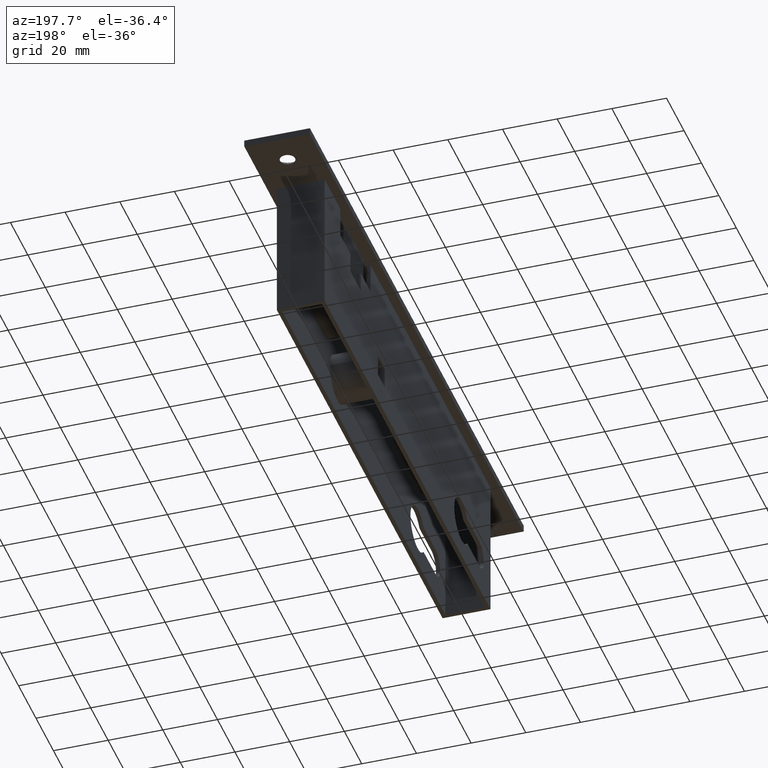
[diagram: clean part render]
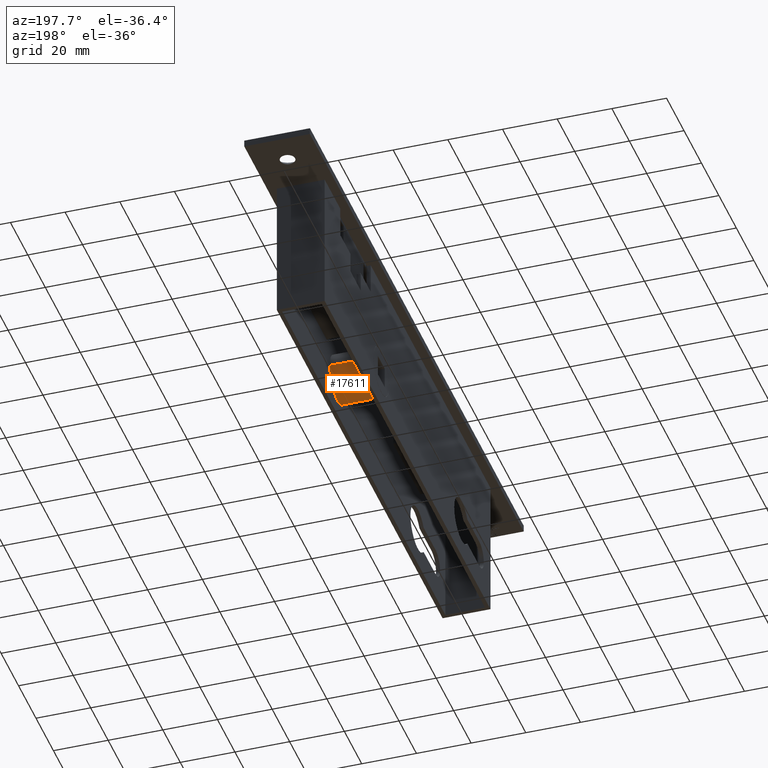
[diagram: same view with one face highlighted and labeled with its STEP entity id]
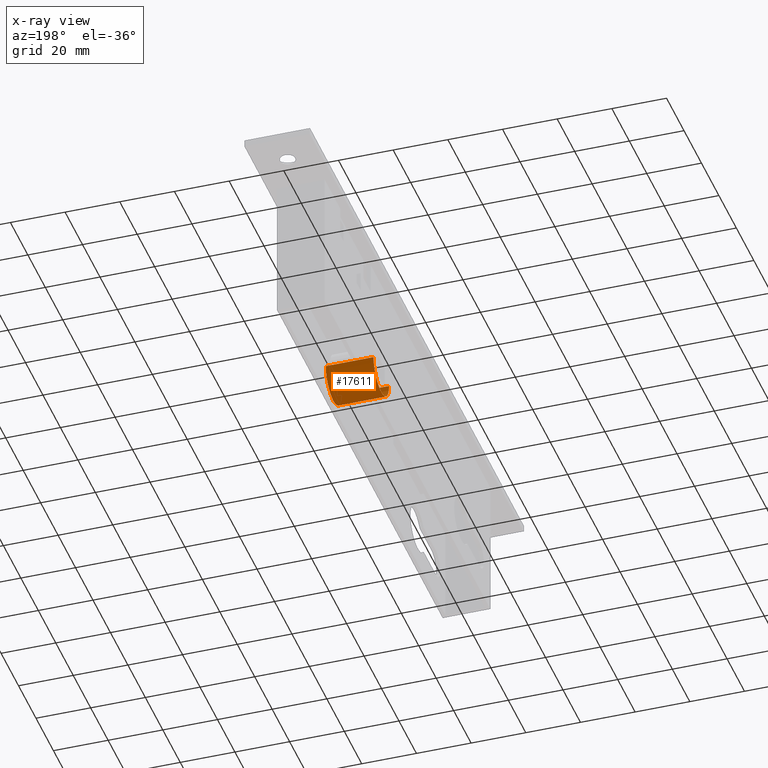
[diagram: x-ray of the same camera — body ghosted, the highlighted face saturated]
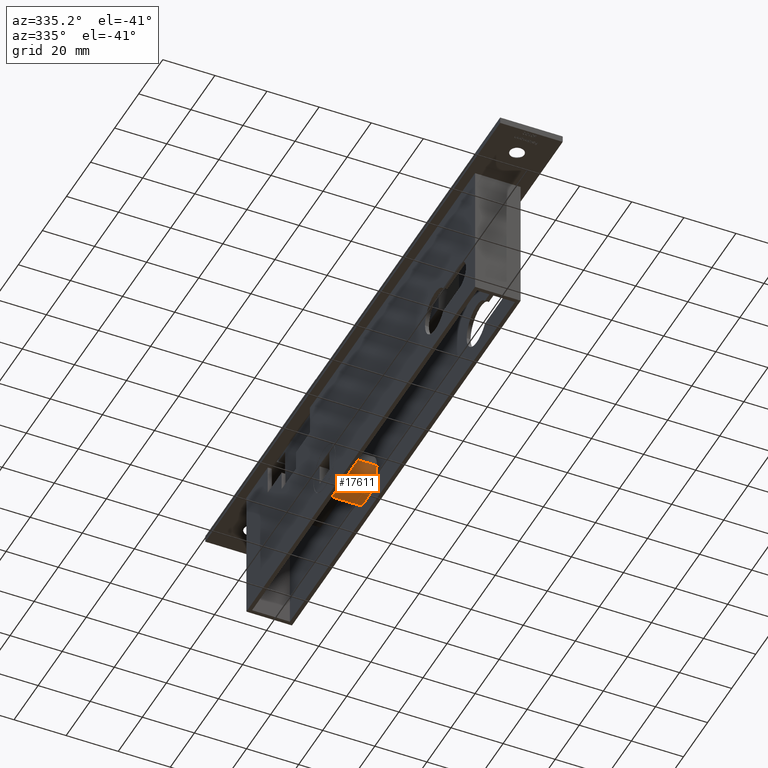
[diagram: same view with one face highlighted and labeled with its STEP entity id]
A machine part, auxiliary view. The second image highlights one B-rep face of the part: STEP entity #17611.
The next image is the same camera in x-ray: the body ghosted, the highlighted face saturated — about 0% of this face is hidden behind the body in this view.
A second angle (auxiliary view) of the same face is appended — the face is thin or edge-on in the first view.
In plain terms, the highlighted cylindrical surface (edge-blend (fillet) strip) has radius 8.9 mm, axis along (1, -0, -0).
Its self-contained STEP definition (entity closure, byte-faithful):
#23 = EDGE_LOOP ( 'NONE', ( #3910, #10584, #2150, #20728 ) ) ;
#716 = EDGE_CURVE ( 'NONE', #12068, #4866, #11667, .T. ) ;
#2150 = ORIENTED_EDGE ( 'NONE', *, *, #2489, .T. ) ;
#2261 = CARTESIAN_POINT ( 'NONE',  ( 8.750000000000021300, 161.8999999999999800, -37.49999999999999300 ) ) ;
#2489 = EDGE_CURVE ( 'NONE', #17994, #14400, #16027, .T. ) ;
#3910 = ORIENTED_EDGE ( 'NONE', *, *, #716, .F. ) ;
#4286 = CARTESIAN_POINT ( 'NONE',  ( -12.00000000000001100, 161.8999999999999800, -37.49999999999999300 ) ) ;
#4866 = VERTEX_POINT ( 'NONE', #8401 ) ;
#5903 = DIRECTION ( 'NONE',  ( 1.000000000000000000, -1.095614826932720200E-016, -0.0000000000000000000 ) ) ;
#5956 = EDGE_CURVE ( 'NONE', #12068, #17994, #6155, .T. ) ;
#6155 = CIRCLE ( 'NONE', #22682, 8.899999999999991500 ) ;
#8017 = CARTESIAN_POINT ( 'NONE',  ( 8.750000000000019500, 153.0000000000000000, -37.49999999999999300 ) ) ;
#8401 = CARTESIAN_POINT ( 'NONE',  ( 8.750000000000017800, 144.0999999999999900, -37.49999999999999300 ) ) ;
#8763 = EDGE_CURVE ( 'NONE', #4866, #14400, #9412, .T. ) ;
#9412 = CIRCLE ( 'NONE', #19974, 8.899999999999991500 ) ;
#9614 = DIRECTION ( 'NONE',  ( 1.949127501097537900E-016, 1.000000000000000000, 0.0000000000000000000 ) ) ;
#9951 = AXIS2_PLACEMENT_3D ( 'NONE', #15142, #16861, #9614 ) ;
#10584 = ORIENTED_EDGE ( 'NONE', *, *, #5956, .T. ) ;
#10691 = CARTESIAN_POINT ( 'NONE',  ( -12.00000000000001400, 144.0999999999999900, -37.49999999999999300 ) ) ;
#11667 = LINE ( 'NONE', #10691, #19493 ) ;
#11851 = CARTESIAN_POINT ( 'NONE',  ( -8.749999999999985800, 161.8999999999999800, -37.49999999999999300 ) ) ;
#12068 = VERTEX_POINT ( 'NONE', #18140 ) ;
#12252 = DIRECTION ( 'NONE',  ( 1.000000000000000000, -1.278217298088173700E-016, 0.0000000000000000000 ) ) ;
#12654 = FACE_OUTER_BOUND ( 'NONE', #23, .T. ) ;
#14400 = VERTEX_POINT ( 'NONE', #2261 ) ;
#15142 = CARTESIAN_POINT ( 'NONE',  ( -12.00000000000001200, 153.0000000000000000, -37.49999999999999300 ) ) ;
#15457 = DIRECTION ( 'NONE',  ( 1.949127501097537900E-016, 1.000000000000000000, 0.0000000000000000000 ) ) ;
#15882 = DIRECTION ( 'NONE',  ( 1.949127501097537900E-016, 1.000000000000000000, 0.0000000000000000000 ) ) ;
#16027 = LINE ( 'NONE', #4286, #17973 ) ;
#16861 = DIRECTION ( 'NONE',  ( 1.000000000000000000, -1.095614826932720200E-016, -0.0000000000000000000 ) ) ;
#17611 = ADVANCED_FACE ( 'NONE', ( #12654 ), #20250, .T. ) ;
#17973 = VECTOR ( 'NONE', #5903, 1000.000000000000000 ) ;
#17994 = VERTEX_POINT ( 'NONE', #11851 ) ;
#18140 = CARTESIAN_POINT ( 'NONE',  ( -8.749999999999989300, 144.0999999999999900, -37.49999999999999300 ) ) ;
#19412 = CARTESIAN_POINT ( 'NONE',  ( -8.749999999999987600, 153.0000000000000000, -37.49999999999999300 ) ) ;
#19493 = VECTOR ( 'NONE', #21330, 1000.000000000000000 ) ;
#19974 = AXIS2_PLACEMENT_3D ( 'NONE', #8017, #22518, #15457 ) ;
#20250 = CYLINDRICAL_SURFACE ( 'NONE', #9951, 8.899999999999991500 ) ;
#20728 = ORIENTED_EDGE ( 'NONE', *, *, #8763, .F. ) ;
#21330 = DIRECTION ( 'NONE',  ( 1.000000000000000000, -1.095614826932720200E-016, -0.0000000000000000000 ) ) ;
#22518 = DIRECTION ( 'NONE',  ( 1.000000000000000000, -1.095614826932720200E-016, 0.0000000000000000000 ) ) ;
#22682 = AXIS2_PLACEMENT_3D ( 'NONE', #19412, #12252, #15882 ) ;